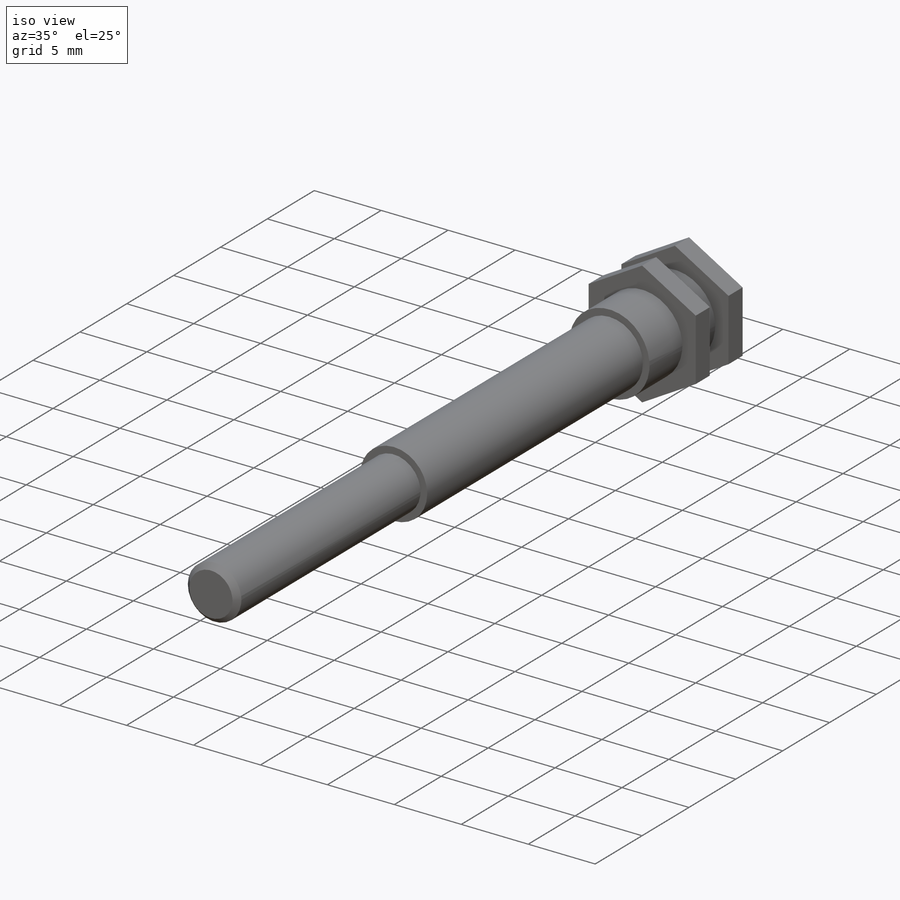
[diagram: iso view]
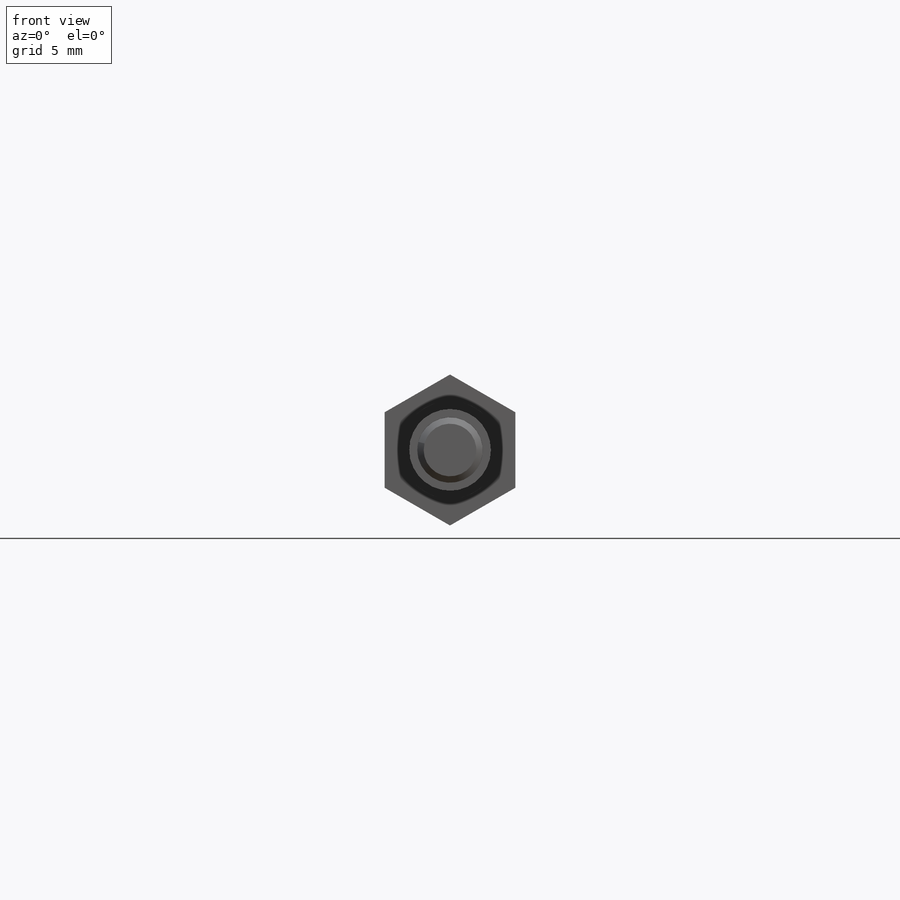
[diagram: front view]
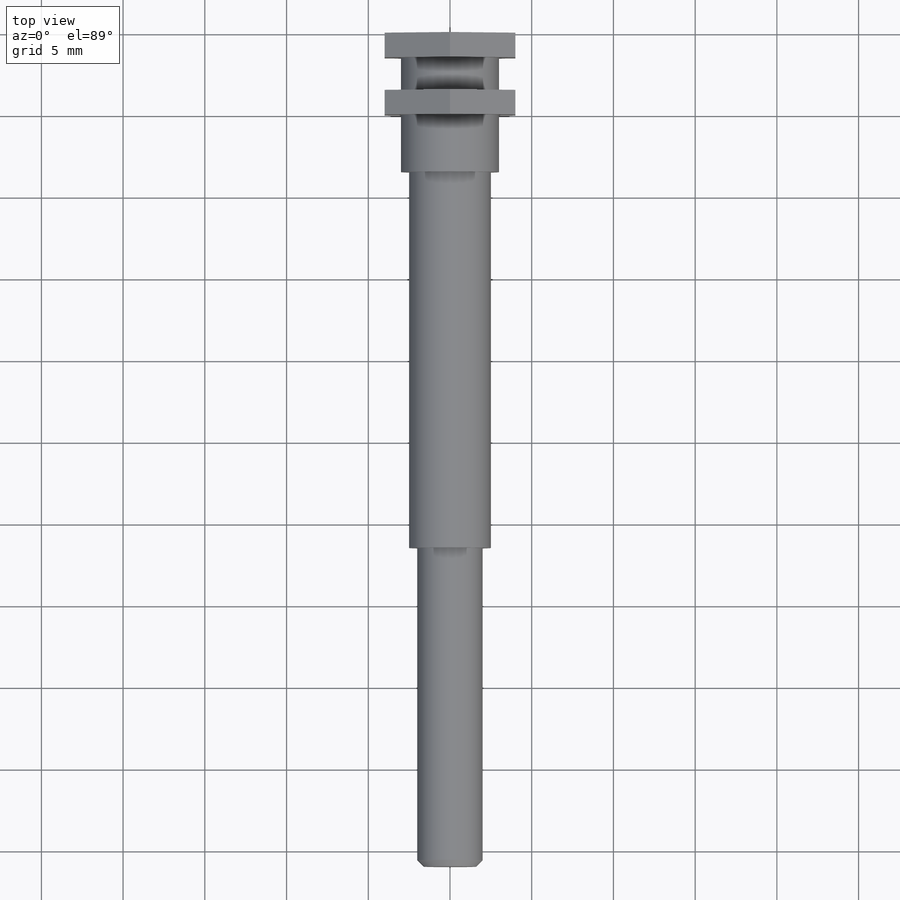
[diagram: top view]
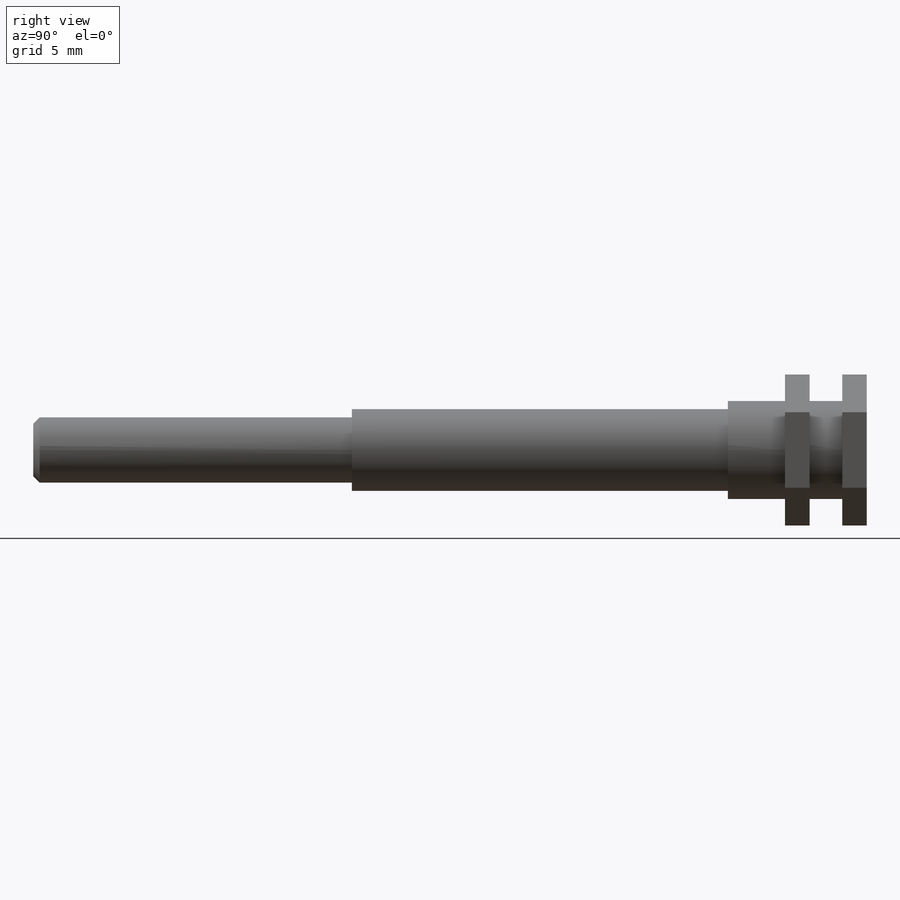
[diagram: right view]
SOLIDWORKS PART (.sldprt)
format: sldprt  version: not decoded by parser v0  size: 295,424 bytes
history: native  units: mm
features: sketch x5, extrude x5, plane x3, material x1, thread x1, chamfer x1 (+9 scaffold rows collapsed)
feature tree (25):
  scaffold x9  (default folders/planes/origin — collapsed)
  material  "Латунь"
  plane  "Спереди"
  plane  "Сверху"
  plane  "Справа"
  sketch  "Эскиз1"  dims[D1=8.0mm]
  extrude  "Бобышка-Вытянуть1"  Depth=1.5mm
  sketch  "Эскиз2"  dims[D1=6.0mm]
  extrude  "Бобышка-Вытянуть2"  Depth=7mm
  extrude  "Бобышка-Вытянуть3"  [1 undecoded]
  sketch  "Эскиз1<2>"  dims[D1=1.5mm D19=3.5mm]
  sketch  "Эскиз3"  dims[D1=5.0mm]
  extrude  "Бобышка-Вытянуть4"  Depth=23mm
  sketch  "Эскиз4"  dims[D1=4.0mm]
  extrude  "Бобышка-Вытянуть5"  [1 undecoded]
  thread  "Условное изображение резьбы1"  Diameter=3.22mm  [1 undecoded]
  chamfer  "Фаска1"  Distance=0.39mm Angle=45deg
decode coverage: 10 of 12 modeling features carry decoded parameters
note: 3 parameter values undecoded
note: suppression state not decoded; provenance and decode notes live in map.json
